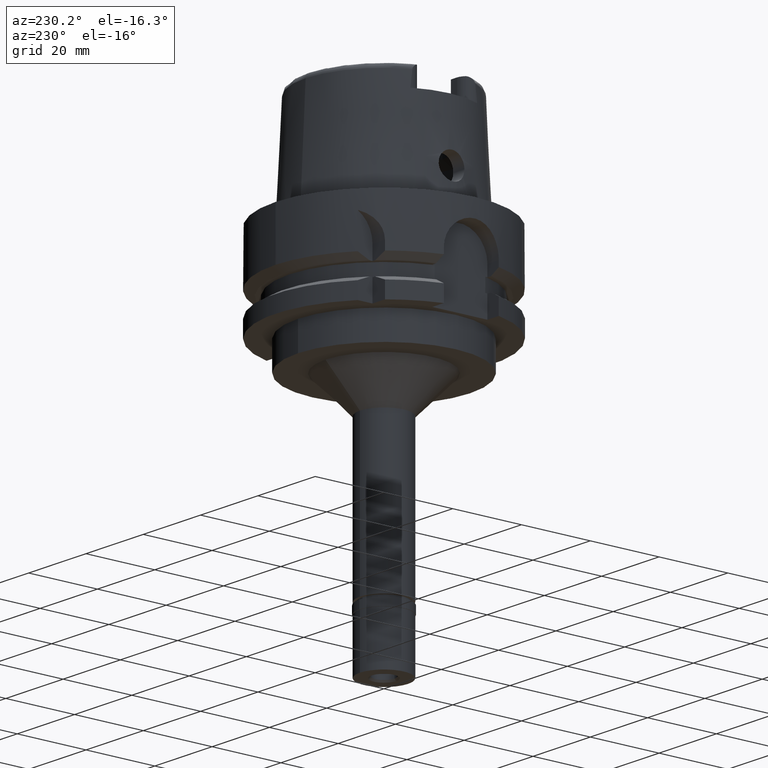
[diagram: clean part render]
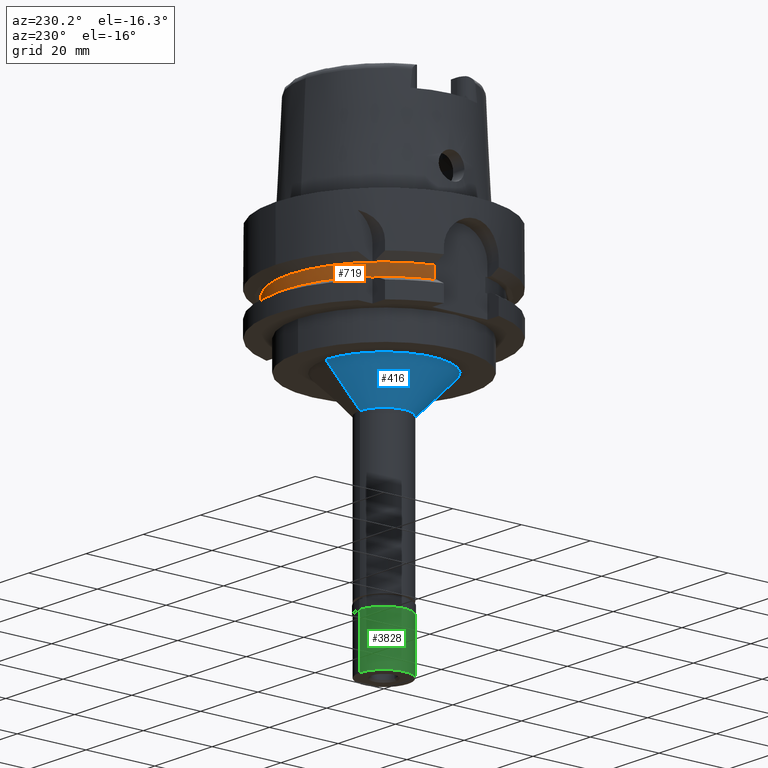
[diagram: same view with three faces highlighted in distinct colors, each labeled with its STEP entity id]
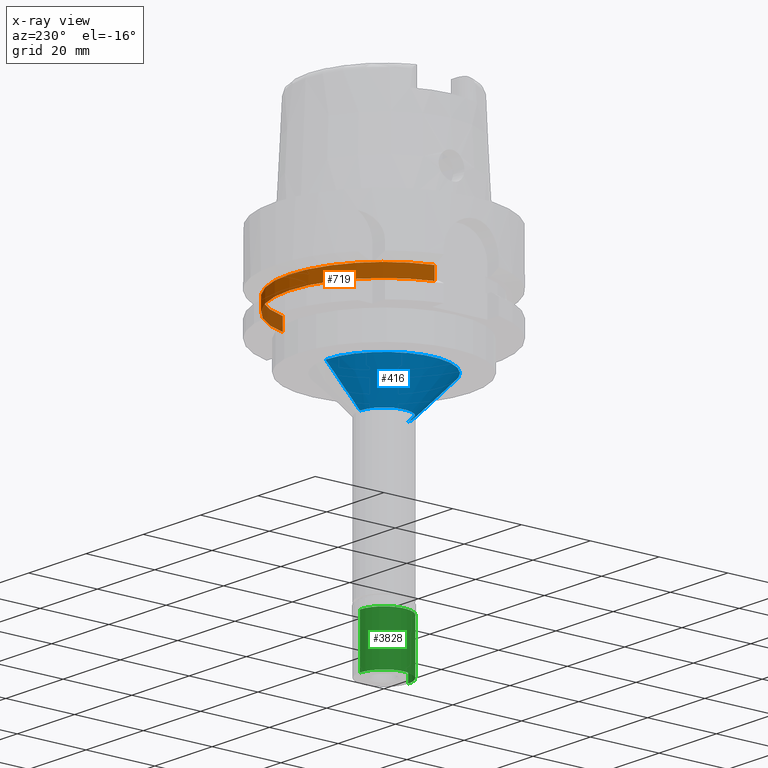
[diagram: x-ray of the same camera — body ghosted, the three highlighted faces saturated]
A machine part, auxiliary view with three faces highlighted in distinct colors.
The next image is the same camera in x-ray (body ghosted, the three faces saturated) — at least one of them is partly hidden behind the body in this view.
Their STEP definitions:

[orange] entity #719 — the highlighted cylindrical surface (partial cylindrical patch) has radius 27.5 mm, axis along (0, 0, 1).
#22 = CARTESIAN_POINT ( 'NONE',  ( 26.50000000000000000, 7.348469228349999938, -16.12500000000000000 ) ) ;
#196 = DIRECTION ( 'NONE',  ( 0.0000000000000000000, 1.000000000000000000, 0.0000000000000000000 ) ) ;
#261 = ORIENTED_EDGE ( 'NONE', *, *, #1338, .T. ) ;
#404 = VERTEX_POINT ( 'NONE', #1476 ) ;
#473 = DIRECTION ( 'NONE',  ( 0.0000000000000000000, 0.0000000000000000000, 1.000000000000000000 ) ) ;
#637 = VERTEX_POINT ( 'NONE', #22 ) ;
#719 = ADVANCED_FACE ( 'NONE', ( #3045 ), #2272, .T. ) ;
#880 = DIRECTION ( 'NONE',  ( 0.0000000000000000000, 1.000000000000000000, 0.0000000000000000000 ) ) ;
#913 = DIRECTION ( 'NONE',  ( -0.9636363636363595164, 0.2672170628490889155, 0.0000000000000000000 ) ) ;
#980 = EDGE_LOOP ( 'NONE', ( #261, #2918, #1438, #5221 ) ) ;
#1247 = LINE ( 'NONE', #3502, #3143 ) ;
#1338 = EDGE_CURVE ( 'NONE', #404, #637, #4750, .T. ) ;
#1438 = ORIENTED_EDGE ( 'NONE', *, *, #4794, .T. ) ;
#1476 = CARTESIAN_POINT ( 'NONE',  ( -26.50000000000000000, 7.348469228349999938, -16.12500000000000000 ) ) ;
#1577 = AXIS2_PLACEMENT_3D ( 'NONE', #3456, #3377, #913 ) ;
#1782 = CARTESIAN_POINT ( 'NONE',  ( -26.50000000000000000, 7.348469228349999938, -19.87500000000000000 ) ) ;
#1964 = VERTEX_POINT ( 'NONE', #3422 ) ;
#2257 = AXIS2_PLACEMENT_3D ( 'NONE', #4698, #473, #880 ) ;
#2272 = CYLINDRICAL_SURFACE ( 'NONE', #3601, 27.50000000000000000 ) ;
#2445 = EDGE_CURVE ( 'NONE', #1964, #637, #3087, .T. ) ;
#2636 = CARTESIAN_POINT ( 'NONE',  ( 26.50000000000000000, 7.348469228349999938, -19.87500000000000000 ) ) ;
#2793 = CIRCLE ( 'NONE', #2257, 27.50000000000000000 ) ;
#2813 = VERTEX_POINT ( 'NONE', #1782 ) ;
#2918 = ORIENTED_EDGE ( 'NONE', *, *, #2445, .F. ) ;
#3045 = FACE_OUTER_BOUND ( 'NONE', #980, .T. ) ;
#3087 = LINE ( 'NONE', #2636, #3683 ) ;
#3143 = VECTOR ( 'NONE', #3885, 1000.000000000000000 ) ;
#3377 = DIRECTION ( 'NONE',  ( 0.0000000000000000000, 0.0000000000000000000, -1.000000000000000000 ) ) ;
#3422 = CARTESIAN_POINT ( 'NONE',  ( 26.50000000000000000, 7.348469228349999938, -19.87500000000000000 ) ) ;
#3456 = CARTESIAN_POINT ( 'NONE',  ( 0.0000000000000000000, 0.0000000000000000000, -16.12500000000000000 ) ) ;
#3502 = CARTESIAN_POINT ( 'NONE',  ( -26.50000000000000000, 7.348469228349999938, -16.12500000000000000 ) ) ;
#3601 = AXIS2_PLACEMENT_3D ( 'NONE', #3903, #5173, #196 ) ;
#3683 = VECTOR ( 'NONE', #3850, 1000.000000000000000 ) ;
#3850 = DIRECTION ( 'NONE',  ( 0.0000000000000000000, 0.0000000000000000000, 1.000000000000000000 ) ) ;
#3885 = DIRECTION ( 'NONE',  ( 0.0000000000000000000, 0.0000000000000000000, -1.000000000000000000 ) ) ;
#3903 = CARTESIAN_POINT ( 'NONE',  ( 0.0000000000000000000, 0.0000000000000000000, -107.6499999999999915 ) ) ;
#4698 = CARTESIAN_POINT ( 'NONE',  ( 0.0000000000000000000, 0.0000000000000000000, -19.87500000000000000 ) ) ;
#4725 = EDGE_CURVE ( 'NONE', #404, #2813, #1247, .T. ) ;
#4750 = CIRCLE ( 'NONE', #1577, 27.50000000000001066 ) ;
#4794 = EDGE_CURVE ( 'NONE', #1964, #2813, #2793, .T. ) ;
#5173 = DIRECTION ( 'NONE',  ( 0.0000000000000000000, 0.0000000000000000000, 1.000000000000000000 ) ) ;
#5221 = ORIENTED_EDGE ( 'NONE', *, *, #4725, .F. ) ;

[blue] entity #416 — the highlighted conical surface has half-angle 45 deg.
#80 = CONICAL_SURFACE ( 'NONE', #5008, 12.00000000000000000, 0.7853981633972997312 ) ;
#207 = DIRECTION ( 'NONE',  ( 0.0000000000000000000, -1.000000000000000000, 0.0000000000000000000 ) ) ;
#317 = DIRECTION ( 'NONE',  ( 0.0000000000000000000, -1.000000000000000000, 0.0000000000000000000 ) ) ;
#416 = ADVANCED_FACE ( 'NONE', ( #2361 ), #80, .T. ) ;
#539 = CARTESIAN_POINT ( 'NONE',  ( 0.0000000000000000000, -17.00000000000000000, -34.00000000000000000 ) ) ;
#600 = VECTOR ( 'NONE', #1802, 1000.000000000000114 ) ;
#608 = DIRECTION ( 'NONE',  ( 0.0000000000000000000, 0.0000000000000000000, -1.000000000000000000 ) ) ;
#653 = VERTEX_POINT ( 'NONE', #4243 ) ;
#663 = VERTEX_POINT ( 'NONE', #2991 ) ;
#785 = VERTEX_POINT ( 'NONE', #4027 ) ;
#849 = LINE ( 'NONE', #3804, #1630 ) ;
#995 = CARTESIAN_POINT ( 'NONE',  ( 0.0000000000000000000, 0.0000000000000000000, -44.00000000000000000 ) ) ;
#1220 = CARTESIAN_POINT ( 'NONE',  ( 0.0000000000000000000, -17.00000000000000000, -34.00000000000000000 ) ) ;
#1375 = ORIENTED_EDGE ( 'NONE', *, *, #5371, .F. ) ;
#1630 = VECTOR ( 'NONE', #2587, 1000.000000000000114 ) ;
#1749 = VERTEX_POINT ( 'NONE', #1220 ) ;
#1800 = EDGE_CURVE ( 'NONE', #1749, #653, #4844, .T. ) ;
#1802 = DIRECTION ( 'NONE',  ( 0.0000000000000000000, 0.7071067811865474617, -0.7071067811865474617 ) ) ;
#1916 = DIRECTION ( 'NONE',  ( 0.0000000000000000000, 0.0000000000000000000, 1.000000000000000000 ) ) ;
#1990 = AXIS2_PLACEMENT_3D ( 'NONE', #995, #608, #207 ) ;
#2136 = ORIENTED_EDGE ( 'NONE', *, *, #3888, .F. ) ;
#2346 = EDGE_LOOP ( 'NONE', ( #2136, #1375, #3882, #2875 ) ) ;
#2361 = FACE_OUTER_BOUND ( 'NONE', #2346, .T. ) ;
#2426 = CARTESIAN_POINT ( 'NONE',  ( 0.0000000000000000000, 0.0000000000000000000, -34.00000000000000000 ) ) ;
#2587 = DIRECTION ( 'NONE',  ( 0.0000000000000000000, -0.7071067811865474617, -0.7071067811865474617 ) ) ;
#2875 = ORIENTED_EDGE ( 'NONE', *, *, #3799, .T. ) ;
#2991 = CARTESIAN_POINT ( 'NONE',  ( 0.0000000000000000000, 7.000000000000000000, -44.00000000000000000 ) ) ;
#3157 = DIRECTION ( 'NONE',  ( 0.0000000000000000000, 1.000000000000000000, 0.0000000000000000000 ) ) ;
#3344 = AXIS2_PLACEMENT_3D ( 'NONE', #2426, #3676, #317 ) ;
#3572 = CARTESIAN_POINT ( 'NONE',  ( 0.0000000000000000000, 0.0000000000000000000, -39.00000000000000000 ) ) ;
#3676 = DIRECTION ( 'NONE',  ( 0.0000000000000000000, 0.0000000000000000000, -1.000000000000000000 ) ) ;
#3751 = CIRCLE ( 'NONE', #1990, 7.000000000000000000 ) ;
#3799 = EDGE_CURVE ( 'NONE', #653, #663, #849, .T. ) ;
#3804 = CARTESIAN_POINT ( 'NONE',  ( 0.0000000000000000000, 17.00000000000000000, -34.00000000000000000 ) ) ;
#3882 = ORIENTED_EDGE ( 'NONE', *, *, #1800, .T. ) ;
#3888 = EDGE_CURVE ( 'NONE', #785, #663, #3751, .T. ) ;
#4027 = CARTESIAN_POINT ( 'NONE',  ( 0.0000000000000000000, -7.000000000000000000, -44.00000000000000000 ) ) ;
#4243 = CARTESIAN_POINT ( 'NONE',  ( 0.0000000000000000000, 17.00000000000000000, -34.00000000000000000 ) ) ;
#4710 = LINE ( 'NONE', #539, #600 ) ;
#4844 = CIRCLE ( 'NONE', #3344, 17.00000000000000000 ) ;
#5008 = AXIS2_PLACEMENT_3D ( 'NONE', #3572, #1916, #3157 ) ;
#5371 = EDGE_CURVE ( 'NONE', #1749, #785, #4710, .T. ) ;

[green] entity #3828 — the highlighted cylindrical surface (edge-blend (fillet) strip) has radius 7 mm, axis along (0, 0, 1).
#147 = DIRECTION ( 'NONE',  ( 0.0000000000000000000, 0.0000000000000000000, 1.000000000000000000 ) ) ;
#309 = CARTESIAN_POINT ( 'NONE',  ( 0.0000000000000000000, 7.000000000000000000, -2.299999999999999822 ) ) ;
#778 = EDGE_CURVE ( 'NONE', #1806, #2336, #4422, .T. ) ;
#833 = DIRECTION ( 'NONE',  ( 0.0000000000000000000, 0.0000000000000000000, -1.000000000000000000 ) ) ;
#1052 = DIRECTION ( 'NONE',  ( 0.0000000000000000000, 1.000000000000000000, 0.0000000000000000000 ) ) ;
#1254 = CARTESIAN_POINT ( 'NONE',  ( 0.0000000000000000000, 0.0000000000000000000, -2.299999999999999822 ) ) ;
#1325 = DIRECTION ( 'NONE',  ( 0.0000000000000000000, 1.000000000000000000, 0.0000000000000000000 ) ) ;
#1499 = ORIENTED_EDGE ( 'NONE', *, *, #778, .T. ) ;
#1736 = VECTOR ( 'NONE', #1952, 1000.000000000000000 ) ;
#1806 = VERTEX_POINT ( 'NONE', #3206 ) ;
#1952 = DIRECTION ( 'NONE',  ( 0.0000000000000000000, 0.0000000000000000000, -1.000000000000000000 ) ) ;
#2016 = CIRCLE ( 'NONE', #4748, 7.000000000000000000 ) ;
#2024 = DIRECTION ( 'NONE',  ( 0.0000000000000000000, -1.000000000000000000, 0.0000000000000000000 ) ) ;
#2120 = CYLINDRICAL_SURFACE ( 'NONE', #4285, 7.000000000000000000 ) ;
#2202 = CARTESIAN_POINT ( 'NONE',  ( 0.0000000000000000000, -7.000000000000000000, -2.299999999999999822 ) ) ;
#2315 = CARTESIAN_POINT ( 'NONE',  ( 0.0000000000000000000, 7.000000000000000000, -17.00000000000000000 ) ) ;
#2336 = VERTEX_POINT ( 'NONE', #2315 ) ;
#2529 = ORIENTED_EDGE ( 'NONE', *, *, #2754, .T. ) ;
#2722 = LINE ( 'NONE', #2202, #4812 ) ;
#2754 = EDGE_CURVE ( 'NONE', #2336, #4425, #2016, .T. ) ;
#2978 = CARTESIAN_POINT ( 'NONE',  ( 0.0000000000000000000, 0.0000000000000000000, -17.85000000000000142 ) ) ;
#3025 = DIRECTION ( 'NONE',  ( 0.0000000000000000000, 0.0000000000000000000, -1.000000000000000000 ) ) ;
#3066 = VERTEX_POINT ( 'NONE', #4168 ) ;
#3206 = CARTESIAN_POINT ( 'NONE',  ( 0.0000000000000000000, 7.000000000000000000, -2.299999999999999822 ) ) ;
#3258 = EDGE_CURVE ( 'NONE', #3066, #1806, #5359, .T. ) ;
#3286 = EDGE_LOOP ( 'NONE', ( #2529, #3590, #3905, #1499 ) ) ;
#3424 = DIRECTION ( 'NONE',  ( 0.0000000000000000000, 0.0000000000000000000, 1.000000000000000000 ) ) ;
#3590 = ORIENTED_EDGE ( 'NONE', *, *, #3921, .F. ) ;
#3828 = ADVANCED_FACE ( 'NONE', ( #4674 ), #2120, .T. ) ;
#3860 = AXIS2_PLACEMENT_3D ( 'NONE', #1254, #833, #2024 ) ;
#3905 = ORIENTED_EDGE ( 'NONE', *, *, #3258, .T. ) ;
#3921 = EDGE_CURVE ( 'NONE', #3066, #4425, #2722, .T. ) ;
#4168 = CARTESIAN_POINT ( 'NONE',  ( 0.0000000000000000000, -7.000000000000000000, -2.299999999999999822 ) ) ;
#4285 = AXIS2_PLACEMENT_3D ( 'NONE', #2978, #3424, #1325 ) ;
#4387 = CARTESIAN_POINT ( 'NONE',  ( 0.0000000000000000000, 0.0000000000000000000, -17.00000000000000000 ) ) ;
#4422 = LINE ( 'NONE', #309, #1736 ) ;
#4425 = VERTEX_POINT ( 'NONE', #4442 ) ;
#4442 = CARTESIAN_POINT ( 'NONE',  ( 0.0000000000000000000, -7.000000000000000000, -17.00000000000000000 ) ) ;
#4674 = FACE_OUTER_BOUND ( 'NONE', #3286, .T. ) ;
#4748 = AXIS2_PLACEMENT_3D ( 'NONE', #4387, #147, #1052 ) ;
#4812 = VECTOR ( 'NONE', #3025, 1000.000000000000000 ) ;
#5359 = CIRCLE ( 'NONE', #3860, 7.000000000000000000 ) ;